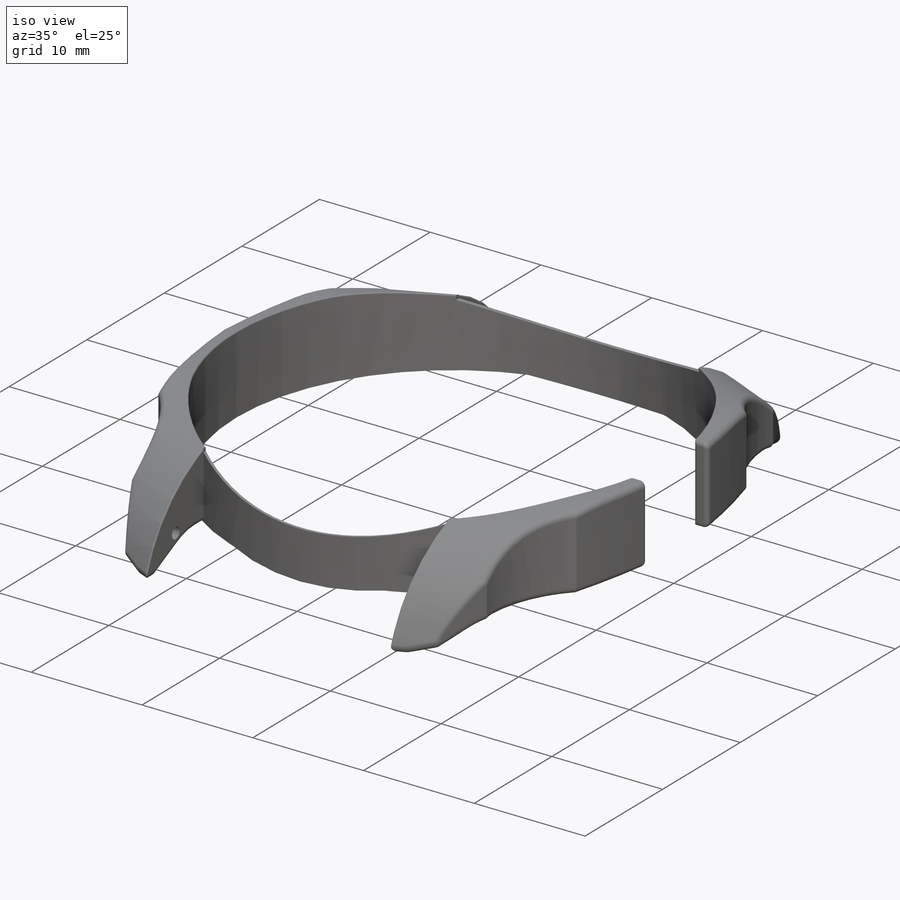
[diagram: iso view]
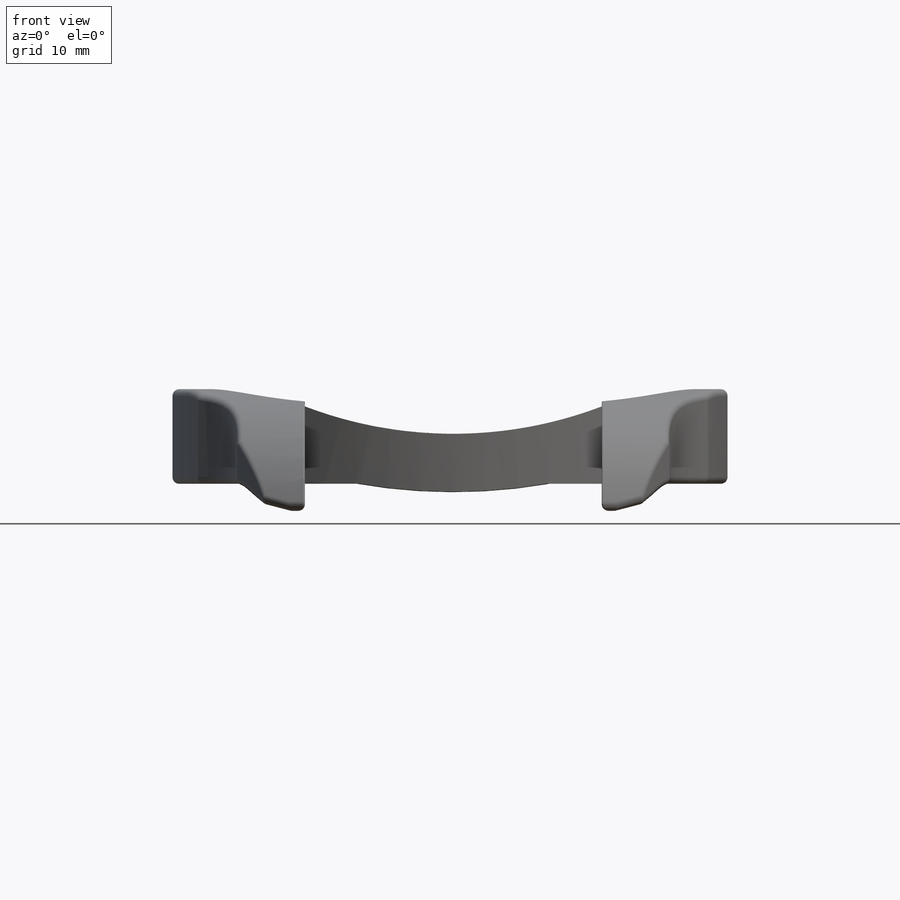
[diagram: front view]
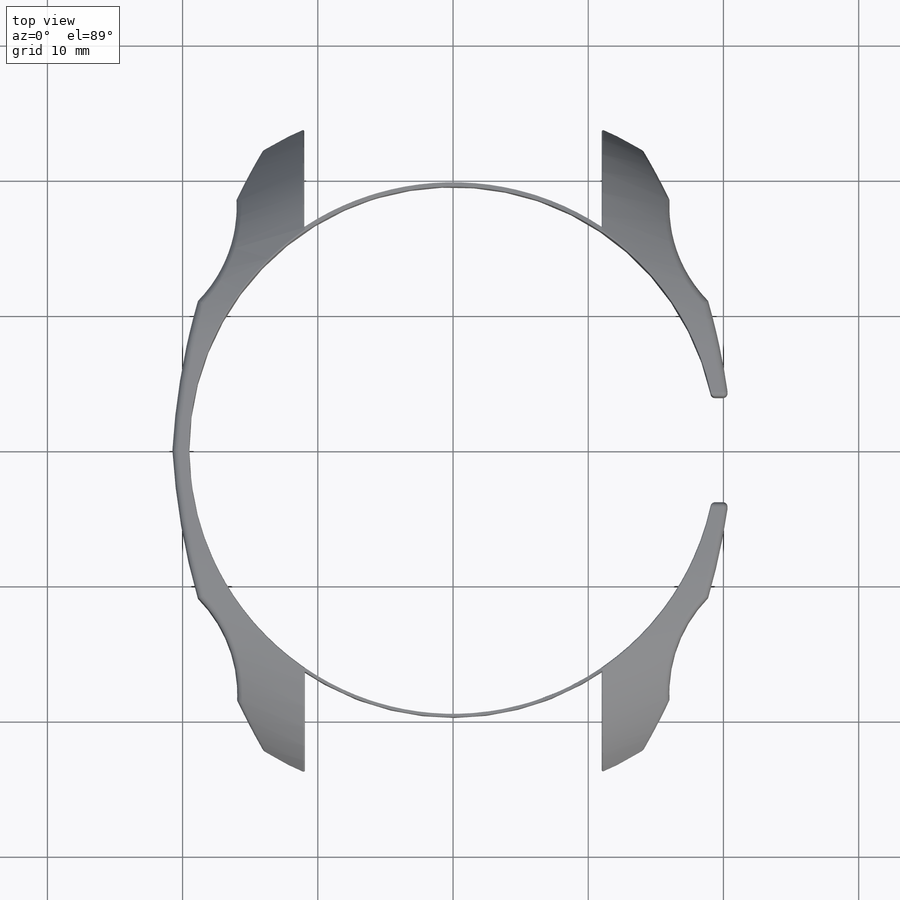
[diagram: top view]
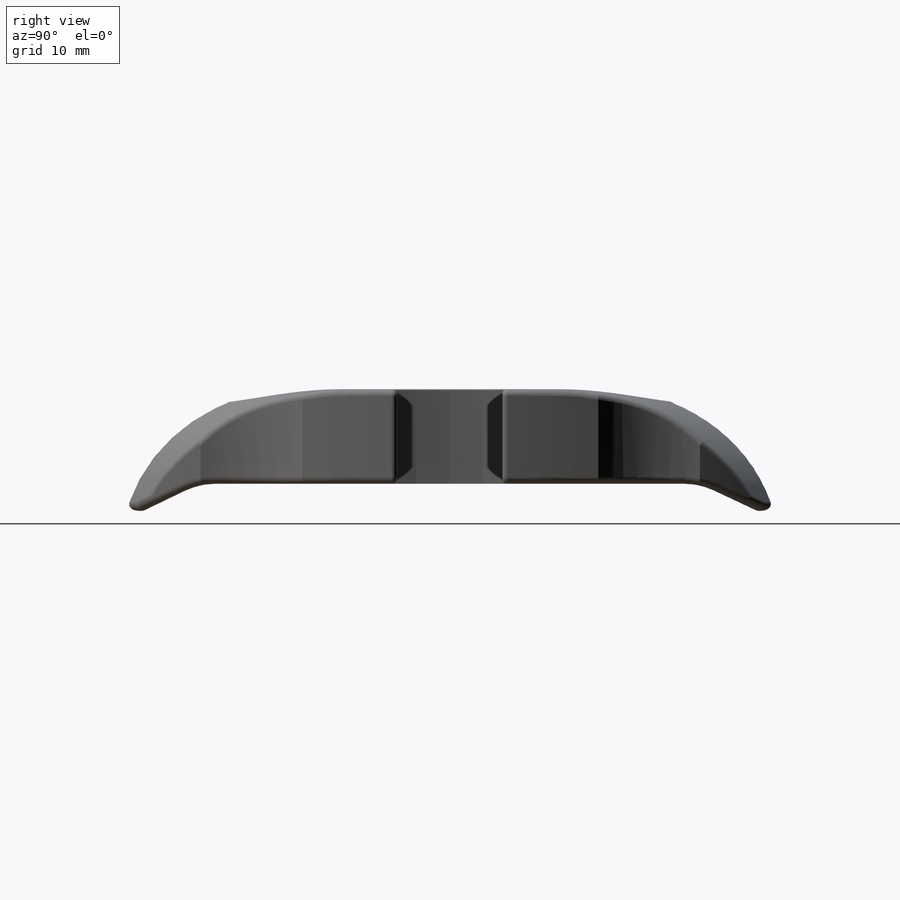
[diagram: right view]
SOLIDWORKS PART (.sldprt)
format: sldprt  version: not decoded by parser v0  size: 924,160 bytes
history: native  units: mm
features: fillet x8, sketch x7, cut_extrude x4, mirror x2, material x1, extrude x1 (+11 scaffold rows collapsed)
feature tree (34):
  scaffold x11  (default folders/planes/origin — collapsed)
  material  "Material <not specified>"
  sketch  "Sketch1"  dims[c1.D1=39.0mm c1.D2=41.5mm c1.D6=50.0mm c1.D13=50.0mm c1.D14=20.0mm c1.D16=20.0mm c1.D17=20.0mm c1.D3=22.0mm c1.D4=11.0mm c1.D5=48.0mm c2.D6=24.0mm c2.D7=27.5mm c2.D8=13.75mm c3.D6=1.25mm c3.D9=22.75mm c3.D10=24.0mm c3.D11=24.0mm c3.D12=22.75mm c3.D15=18.0mm c3.D16=26.0mm c3.D18=26.0mm c3.D19=18.0mm c3.D20=8.0mm c3.D21=4.0mm c3.D22=19.0mm]
  sketch  "Sketch2"  dims[D1=3.9mm D2=3.9mm]
  extrude  "Boss-Extrude1"  Depth=9mm
  sketch  "Sketch3"  dims[D1=2.0mm D2=37.0mm D3=18.5mm]
  cut_extrude  "Cut-Extrude1"  Depth=60mm
  fillet  "Fillet1"  Radius=12mm
  fillet  "Fillet2"  Radius=0.5mm
  fillet  "Fillet3"  Radius=0.1mm
  fillet  "Fillet4"  Radius=0.1mm
  fillet  "Fillet5"  Radius=5mm
  fillet  "Fillet6"  Radius=0.5mm
  sketch  "Sketch4"  dims[D2=105.5mm D1=50.0mm]
  cut_extrude  "Cut-Extrude2"  Depth=100mm
  fillet  "Fillet7"  Radius=0.35mm
  sketch  "Sketch5"
  sketch  "Sketch6"  dims[D1=1.0mm D2=2.5mm D3=20.0mm]
  cut_extrude  "Cut-Extrude5"  Depth=1.5mm
  sketch  "Sketch7"  dims[D1=0.0mm]
  cut_extrude  "Cut-Extrude7"  Depth=2mm
  mirror  "Mirror1"
  mirror  "Mirror2"
  fillet  "Fillet8"  Radius=0.5mm
decode coverage: 19 of 22 modeling features carry decoded parameters
note: suppression state not decoded; provenance and decode notes live in map.json
